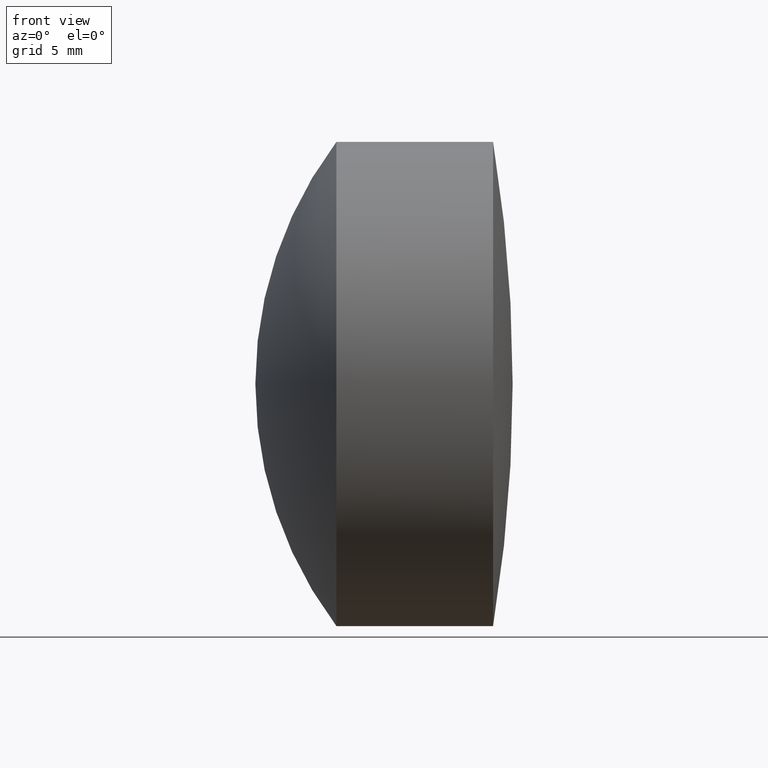
[diagram: clean part render]
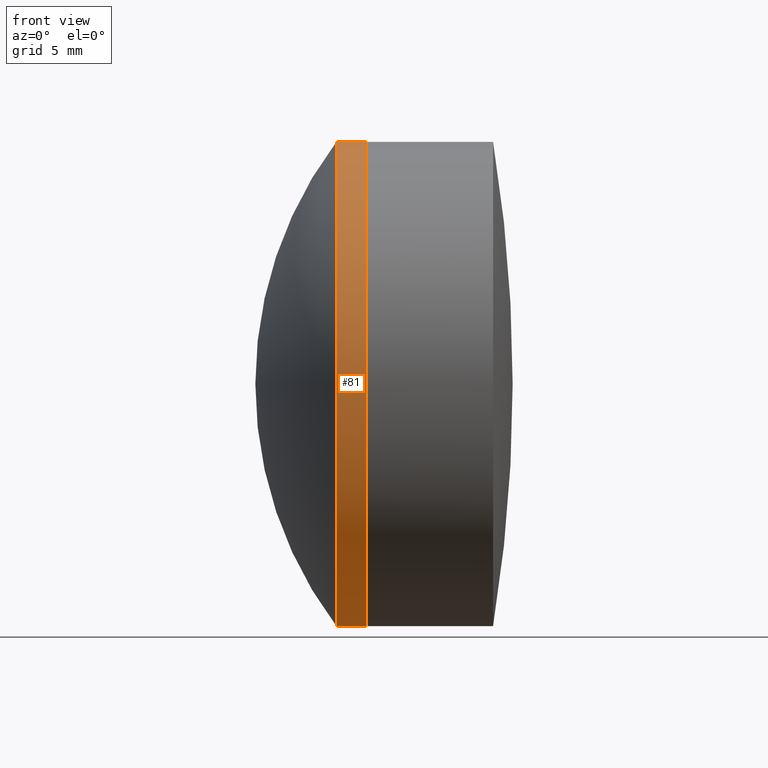
[diagram: same view with one face highlighted and labeled with its STEP entity id]
A machine part, front view. The second image highlights one B-rep face of the part: STEP entity #81.
In plain terms, the highlighted cylindrical surface (partial cylindrical patch) has radius 12.7 mm, axis along (-1, -0, -0).
Its self-contained STEP definition (entity closure, byte-faithful):
#18 = CYLINDRICAL_SURFACE ( 'NONE', #113, 12.70000000000000100 ) ;
#22 = CARTESIAN_POINT ( 'NONE',  ( 124.5233095260452400, 1.555301434917138600E-015, -12.70000000000000100 ) ) ;
#40 = CARTESIAN_POINT ( 'NONE',  ( 272.9115847359946700, 0.0000000000000000000, 0.0000000000000000000 ) ) ;
#44 = EDGE_CURVE ( 'NONE', #157, #139, #82, .T. ) ;
#52 = DIRECTION ( 'NONE',  ( 0.0000000000000000000, 0.0000000000000000000, 1.000000000000000000 ) ) ;
#56 = LINE ( 'NONE', #22, #253 ) ;
#58 = EDGE_CURVE ( 'NONE', #189, #318, #56, .T. ) ;
#66 = DIRECTION ( 'NONE',  ( 0.0000000000000000000, 0.0000000000000000000, 1.000000000000000000 ) ) ;
#72 = CARTESIAN_POINT ( 'NONE',  ( 274.5040750828525800, 0.0000000000000000000, 12.69999999999999600 ) ) ;
#73 = ORIENTED_EDGE ( 'NONE', *, *, #163, .F. ) ;
#76 = AXIS2_PLACEMENT_3D ( 'NONE', #138, #241, #297 ) ;
#81 = ADVANCED_FACE ( 'NONE', ( #296 ), #18, .T. ) ;
#82 = LINE ( 'NONE', #179, #322 ) ;
#90 = ORIENTED_EDGE ( 'NONE', *, *, #44, .T. ) ;
#102 = DIRECTION ( 'NONE',  ( -1.000000000000000000, -0.0000000000000000000, -0.0000000000000000000 ) ) ;
#113 = AXIS2_PLACEMENT_3D ( 'NONE', #167, #178, #52 ) ;
#124 = ORIENTED_EDGE ( 'NONE', *, *, #294, .T. ) ;
#138 = CARTESIAN_POINT ( 'NONE',  ( 274.5040750828525800, 0.0000000000000000000, 0.0000000000000000000 ) ) ;
#139 = VERTEX_POINT ( 'NONE', #250 ) ;
#142 = CIRCLE ( 'NONE', #76, 12.69999999999999600 ) ;
#157 = VERTEX_POINT ( 'NONE', #72 ) ;
#163 = EDGE_CURVE ( 'NONE', #318, #139, #335, .T. ) ;
#167 = CARTESIAN_POINT ( 'NONE',  ( 124.5233095260452400, 0.0000000000000000000, 0.0000000000000000000 ) ) ;
#178 = DIRECTION ( 'NONE',  ( -1.000000000000000000, -0.0000000000000000000, -0.0000000000000000000 ) ) ;
#179 = CARTESIAN_POINT ( 'NONE',  ( 124.5233095260452400, 0.0000000000000000000, 12.70000000000000100 ) ) ;
#181 = DIRECTION ( 'NONE',  ( -1.000000000000000000, -0.0000000000000000000, -0.0000000000000000000 ) ) ;
#189 = VERTEX_POINT ( 'NONE', #336 ) ;
#203 = ORIENTED_EDGE ( 'NONE', *, *, #58, .F. ) ;
#215 = CARTESIAN_POINT ( 'NONE',  ( 272.9115847359946700, 0.0000000000000000000, -12.69999999999999900 ) ) ;
#226 = DIRECTION ( 'NONE',  ( -1.000000000000000000, -0.0000000000000000000, -0.0000000000000000000 ) ) ;
#237 = AXIS2_PLACEMENT_3D ( 'NONE', #40, #226, #66 ) ;
#241 = DIRECTION ( 'NONE',  ( -1.000000000000000000, -0.0000000000000000000, -0.0000000000000000000 ) ) ;
#250 = CARTESIAN_POINT ( 'NONE',  ( 272.9115847359946700, -1.555301434917138400E-015, 12.70000000000000600 ) ) ;
#253 = VECTOR ( 'NONE', #181, 1000.000000000000000 ) ;
#275 = EDGE_LOOP ( 'NONE', ( #203, #124, #90, #73 ) ) ;
#294 = EDGE_CURVE ( 'NONE', #189, #157, #142, .T. ) ;
#296 = FACE_OUTER_BOUND ( 'NONE', #275, .T. ) ;
#297 = DIRECTION ( 'NONE',  ( 0.0000000000000000000, 0.0000000000000000000, 1.000000000000000000 ) ) ;
#318 = VERTEX_POINT ( 'NONE', #215 ) ;
#322 = VECTOR ( 'NONE', #102, 1000.000000000000000 ) ;
#335 = CIRCLE ( 'NONE', #237, 12.70000000000000600 ) ;
#336 = CARTESIAN_POINT ( 'NONE',  ( 274.5040750828525800, 1.555301434917138200E-015, -12.69999999999999600 ) ) ;